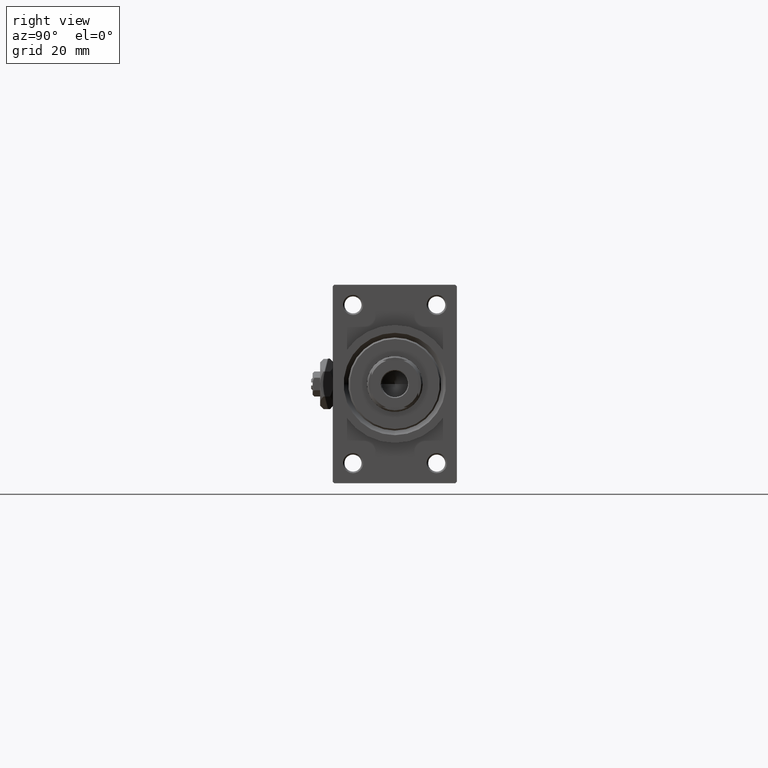
[diagram: clean part render]
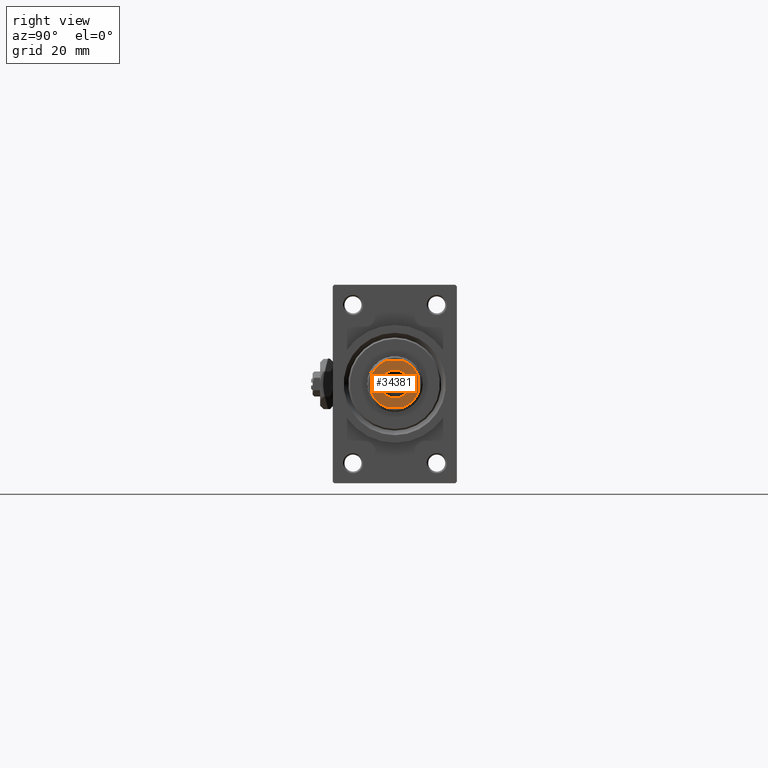
[diagram: same view with one face highlighted and labeled with its STEP entity id]
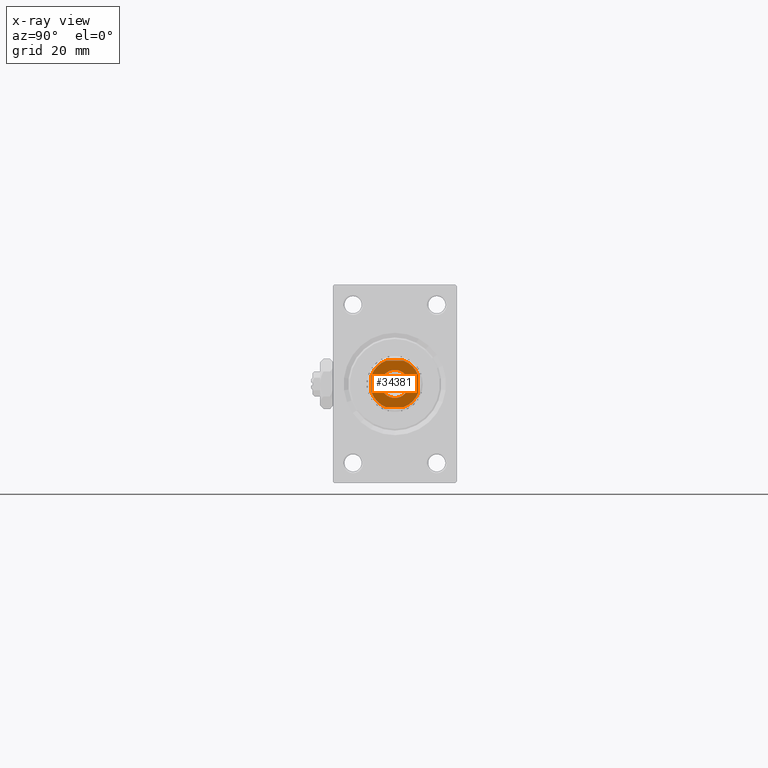
[diagram: x-ray of the same camera — body ghosted, the highlighted face saturated]
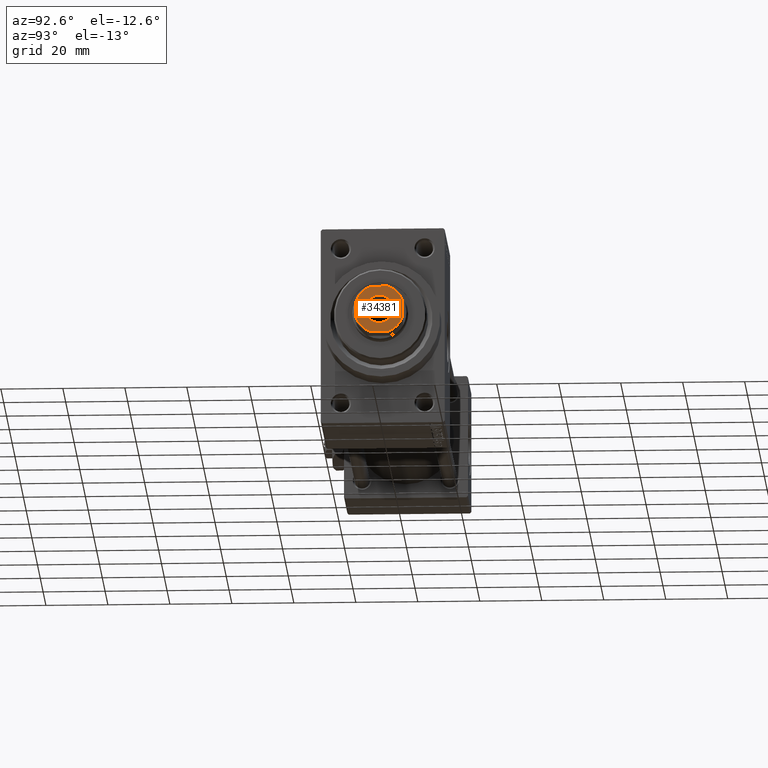
[diagram: same view with one face highlighted and labeled with its STEP entity id]
A machine part, right view. The second image highlights one B-rep face of the part: STEP entity #34381.
The next image is the same camera in x-ray: the body ghosted, the highlighted face saturated — about 0% of this face is hidden behind the body in this view.
A second angle (auxiliary view) of the same face is appended — the face is thin or edge-on in the first view.
In plain terms, the highlighted planar face has unit normal (1, 0, 0).
Its self-contained STEP definition (entity closure, byte-faithful):
#979 = ORIENTED_EDGE ( 'NONE', *, *, #19060, .T. ) ;
#1662 = ORIENTED_EDGE ( 'NONE', *, *, #7609, .T. ) ;
#2338 = CARTESIAN_POINT ( 'NONE',  ( -4.550000000000054001, 5.572142936120522408E-16, 190.0000000000000000 ) ) ;
#2386 = LINE ( 'NONE', #34117, #20795 ) ;
#2627 = EDGE_CURVE ( 'NONE', #30623, #42766, #33856, .T. ) ;
#2876 = CIRCLE ( 'NONE', #8401, 7.999999999999783284 ) ;
#3084 = CARTESIAN_POINT ( 'NONE',  ( 0.000000000000000000, 0.000000000000000000, 190.0000000000000000 ) ) ;
#3492 = LINE ( 'NONE', #30616, #32866 ) ;
#4499 = EDGE_CURVE ( 'NONE', #34132, #23788, #36170, .T. ) ;
#4978 = EDGE_CURVE ( 'NONE', #17191, #35864, #2876, .T. ) ;
#5258 = DIRECTION ( 'NONE',  ( -1.156482317317871478E-16, 1.000000000000000000, -0.000000000000000000 ) ) ;
#5360 = CARTESIAN_POINT ( 'NONE',  ( -7.499999999999997335, -2.783882181414453871, 190.0000000000000000 ) ) ;
#6063 = DIRECTION ( 'NONE',  ( 1.000000000000000000, 0.000000000000000000, 0.000000000000000000 ) ) ;
#6292 = CIRCLE ( 'NONE', #21259, 7.999999999999803713 ) ;
#6298 = AXIS2_PLACEMENT_3D ( 'NONE', #46514, #19138, #37408 ) ;
#7204 = LINE ( 'NONE', #48148, #26038 ) ;
#7609 = EDGE_CURVE ( 'NONE', #35864, #12130, #3492, .T. ) ;
#8401 = AXIS2_PLACEMENT_3D ( 'NONE', #28205, #43242, #28942 ) ;
#9506 = AXIS2_PLACEMENT_3D ( 'NONE', #3084, #24543, #6063 ) ;
#10054 = CARTESIAN_POINT ( 'NONE',  ( 7.500000000000000888, 2.783882181414386370, 190.0000000000000000 ) ) ;
#11017 = CARTESIAN_POINT ( 'NONE',  ( 0.000000000000000000, 0.000000000000000000, 190.0000000000000000 ) ) ;
#11491 = CARTESIAN_POINT ( 'NONE',  ( 2.783882181414387702, -7.500000000000000000, 190.0000000000000000 ) ) ;
#12045 = FACE_OUTER_BOUND ( 'NONE', #42609, .T. ) ;
#12130 = VERTEX_POINT ( 'NONE', #45132 ) ;
#12809 = CARTESIAN_POINT ( 'NONE',  ( -2.783882181414448098, -7.500000000000000000, 190.0000000000000000 ) ) ;
#15487 = CARTESIAN_POINT ( 'NONE',  ( 0.000000000000000000, 0.000000000000000000, 190.0000000000000000 ) ) ;
#15709 = ORIENTED_EDGE ( 'NONE', *, *, #34270, .T. ) ;
#15959 = ORIENTED_EDGE ( 'NONE', *, *, #4978, .T. ) ;
#16678 = EDGE_CURVE ( 'NONE', #12130, #19391, #6292, .T. ) ;
#17191 = VERTEX_POINT ( 'NONE', #10054 ) ;
#18515 = DIRECTION ( 'NONE',  ( -1.000000000000000000, -1.156482317317871478E-16, -0.000000000000000000 ) ) ;
#19060 = EDGE_CURVE ( 'NONE', #23788, #34132, #27646, .T. ) ;
#19138 = DIRECTION ( 'NONE',  ( -0.000000000000000000, 0.000000000000000000, 1.000000000000000000 ) ) ;
#19391 = VERTEX_POINT ( 'NONE', #47431 ) ;
#19676 = PLANE ( 'NONE',  #34675 ) ;
#19748 = ORIENTED_EDGE ( 'NONE', *, *, #40359, .T. ) ;
#20795 = VECTOR ( 'NONE', #29932, 1000.000000000000000 ) ;
#20981 = CARTESIAN_POINT ( 'NONE',  ( 7.500000000000000888, -2.783882181414385037, 190.0000000000000000 ) ) ;
#21259 = AXIS2_PLACEMENT_3D ( 'NONE', #45778, #27274, #30983 ) ;
#22024 = CARTESIAN_POINT ( 'NONE',  ( 4.550000000000054001, 0.000000000000000000, 190.0000000000000000 ) ) ;
#22423 = ORIENTED_EDGE ( 'NONE', *, *, #16678, .T. ) ;
#22795 = CIRCLE ( 'NONE', #29109, 7.999999999999783284 ) ;
#23739 = CARTESIAN_POINT ( 'NONE',  ( 7.500000000000000000, 7.500000000000000000, 190.0000000000000000 ) ) ;
#23788 = VERTEX_POINT ( 'NONE', #22024 ) ;
#24347 = CARTESIAN_POINT ( 'NONE',  ( 2.783882181414388590, 7.499999999999999112, 190.0000000000000000 ) ) ;
#24543 = DIRECTION ( 'NONE',  ( 0.000000000000000000, -0.000000000000000000, -1.000000000000000000 ) ) ;
#26038 = VECTOR ( 'NONE', #40014, 1000.000000000000000 ) ;
#27274 = DIRECTION ( 'NONE',  ( -0.000000000000000000, 0.000000000000000000, 1.000000000000000000 ) ) ;
#27646 = CIRCLE ( 'NONE', #9506, 4.550000000000054001 ) ;
#28205 = CARTESIAN_POINT ( 'NONE',  ( 0.000000000000000000, 0.000000000000000000, 190.0000000000000000 ) ) ;
#28942 = DIRECTION ( 'NONE',  ( 1.000000000000000000, 0.000000000000000000, 0.000000000000000000 ) ) ;
#28959 = ORIENTED_EDGE ( 'NONE', *, *, #4499, .T. ) ;
#29109 = AXIS2_PLACEMENT_3D ( 'NONE', #11017, #48274, #44350 ) ;
#29245 = DIRECTION ( 'NONE',  ( 1.000000000000000000, 0.000000000000000000, 0.000000000000000000 ) ) ;
#29932 = DIRECTION ( 'NONE',  ( 1.156482317317871725E-16, -1.000000000000000000, 0.000000000000000000 ) ) ;
#30616 = CARTESIAN_POINT ( 'NONE',  ( -7.500000000000000000, 7.499999999999998224, 190.0000000000000000 ) ) ;
#30623 = VERTEX_POINT ( 'NONE', #5360 ) ;
#30722 = EDGE_CURVE ( 'NONE', #19391, #30623, #2386, .T. ) ;
#30983 = DIRECTION ( 'NONE',  ( 1.000000000000000000, 0.000000000000000000, 0.000000000000000000 ) ) ;
#31052 = DIRECTION ( 'NONE',  ( -0.000000000000000000, 0.000000000000000000, 1.000000000000000000 ) ) ;
#31461 = AXIS2_PLACEMENT_3D ( 'NONE', #43303, #33187, #29245 ) ;
#32674 = VERTEX_POINT ( 'NONE', #11491 ) ;
#32866 = VECTOR ( 'NONE', #18515, 1000.000000000000000 ) ;
#33187 = DIRECTION ( 'NONE',  ( 0.000000000000000000, -0.000000000000000000, -1.000000000000000000 ) ) ;
#33856 = CIRCLE ( 'NONE', #6298, 7.999999999999803713 ) ;
#34117 = CARTESIAN_POINT ( 'NONE',  ( -7.500000000000000000, 7.499999999999998224, 190.0000000000000000 ) ) ;
#34132 = VERTEX_POINT ( 'NONE', #2338 ) ;
#34229 = ORIENTED_EDGE ( 'NONE', *, *, #36920, .T. ) ;
#34270 = EDGE_CURVE ( 'NONE', #45388, #17191, #39025, .T. ) ;
#34381 = ADVANCED_FACE ( 'NONE', ( #42376, #12045 ), #19676, .T. ) ;
#34675 = AXIS2_PLACEMENT_3D ( 'NONE', #15487, #31052, #34983 ) ;
#34983 = DIRECTION ( 'NONE',  ( 1.000000000000000000, 0.000000000000000000, 0.000000000000000000 ) ) ;
#35145 = ORIENTED_EDGE ( 'NONE', *, *, #2627, .T. ) ;
#35864 = VERTEX_POINT ( 'NONE', #24347 ) ;
#36170 = CIRCLE ( 'NONE', #31461, 4.550000000000054001 ) ;
#36920 = EDGE_CURVE ( 'NONE', #32674, #45388, #22795, .T. ) ;
#37408 = DIRECTION ( 'NONE',  ( 1.000000000000000000, 0.000000000000000000, 0.000000000000000000 ) ) ;
#39025 = LINE ( 'NONE', #23739, #46457 ) ;
#40014 = DIRECTION ( 'NONE',  ( 1.000000000000000000, 0.000000000000000000, 0.000000000000000000 ) ) ;
#40359 = EDGE_CURVE ( 'NONE', #42766, #32674, #7204, .T. ) ;
#42115 = ORIENTED_EDGE ( 'NONE', *, *, #30722, .T. ) ;
#42376 = FACE_BOUND ( 'NONE', #43187, .T. ) ;
#42609 = EDGE_LOOP ( 'NONE', ( #15709, #15959, #1662, #22423, #42115, #35145, #19748, #34229 ) ) ;
#42766 = VERTEX_POINT ( 'NONE', #12809 ) ;
#43187 = EDGE_LOOP ( 'NONE', ( #979, #28959 ) ) ;
#43242 = DIRECTION ( 'NONE',  ( -0.000000000000000000, 0.000000000000000000, 1.000000000000000000 ) ) ;
#43303 = CARTESIAN_POINT ( 'NONE',  ( 0.000000000000000000, 0.000000000000000000, 190.0000000000000000 ) ) ;
#44350 = DIRECTION ( 'NONE',  ( 1.000000000000000000, 0.000000000000000000, 0.000000000000000000 ) ) ;
#45132 = CARTESIAN_POINT ( 'NONE',  ( -2.783882181414451651, 7.499999999999999112, 190.0000000000000000 ) ) ;
#45388 = VERTEX_POINT ( 'NONE', #20981 ) ;
#45778 = CARTESIAN_POINT ( 'NONE',  ( 0.000000000000000000, 0.000000000000000000, 190.0000000000000000 ) ) ;
#46457 = VECTOR ( 'NONE', #5258, 1000.000000000000000 ) ;
#46514 = CARTESIAN_POINT ( 'NONE',  ( 0.000000000000000000, 0.000000000000000000, 190.0000000000000000 ) ) ;
#47431 = CARTESIAN_POINT ( 'NONE',  ( -7.499999999999999112, 2.783882181414451651, 190.0000000000000000 ) ) ;
#48148 = CARTESIAN_POINT ( 'NONE',  ( -7.499999999999998224, -7.500000000000000000, 190.0000000000000000 ) ) ;
#48274 = DIRECTION ( 'NONE',  ( -0.000000000000000000, 0.000000000000000000, 1.000000000000000000 ) ) ;